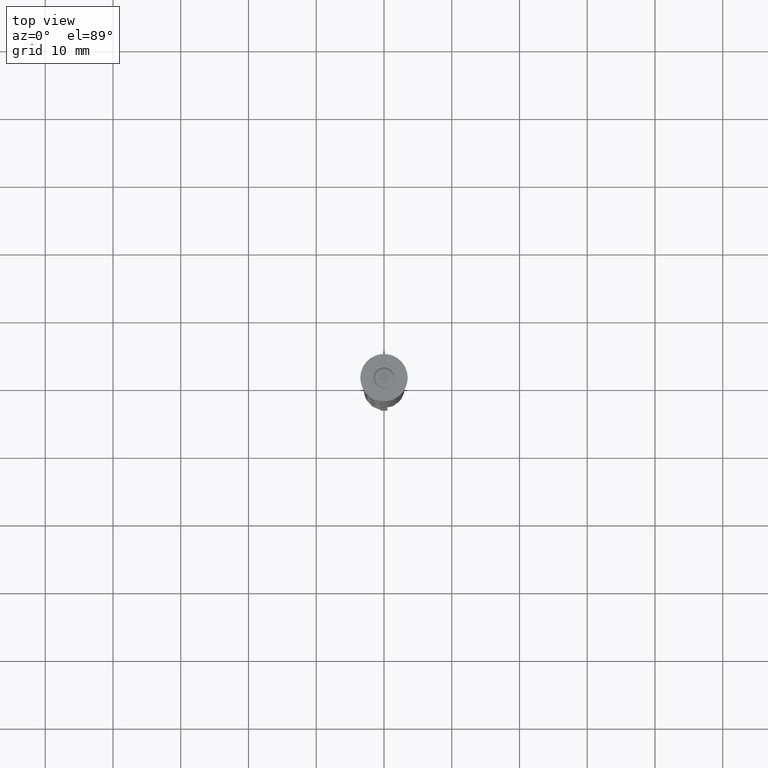
[diagram: clean part render]
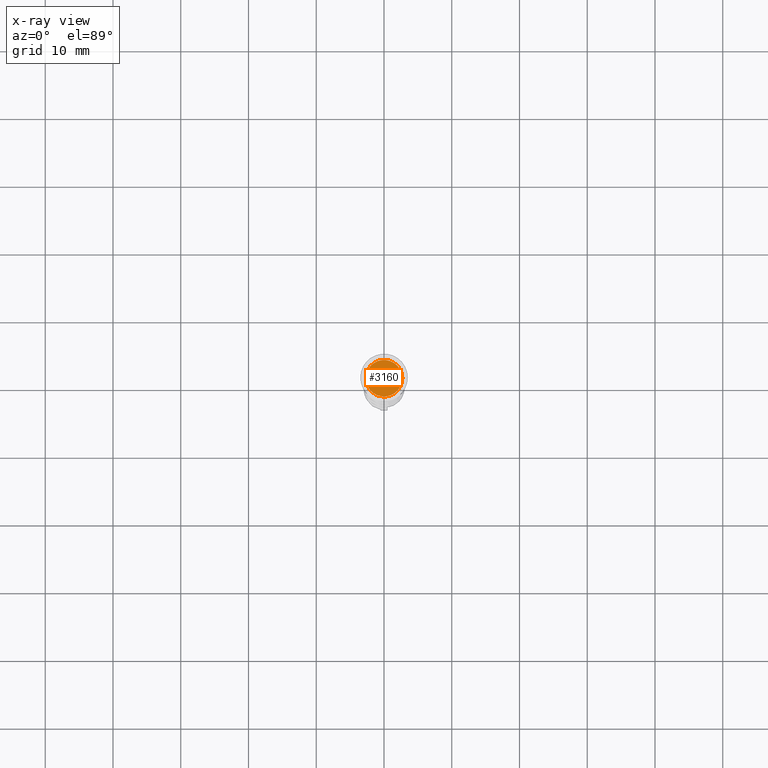
[diagram: x-ray — body ghosted, one internal face saturated and labeled with its STEP entity id]
A machine part, top view, then the same camera in x-ray: the body is ghosted and one INTERNAL B-rep face — a face not visible from any outside direction — is saturated and labeled: STEP entity #3160.
In plain terms, the highlighted planar face has unit normal (0, 0, -1).
Its self-contained STEP definition (entity closure, byte-faithful):
#315 = CARTESIAN_POINT ( 'NONE',  ( -2.700000000000002398, 0.000000000000000000, -5.500000000000000000 ) ) ;
#560 = ORIENTED_EDGE ( 'NONE', *, *, #2716, .T. ) ;
#587 = VERTEX_POINT ( 'NONE', #2917 ) ;
#628 = DIRECTION ( 'NONE',  ( -1.000000000000000000, 0.000000000000000000, 0.000000000000000000 ) ) ;
#742 = DIRECTION ( 'NONE',  ( 0.000000000000000000, 0.000000000000000000, -1.000000000000000000 ) ) ;
#772 = CARTESIAN_POINT ( 'NONE',  ( 0.000000000000000000, 0.000000000000000000, -5.500000000000000000 ) ) ;
#779 = EDGE_CURVE ( 'NONE', #587, #3435, #2226, .T. ) ;
#830 = CARTESIAN_POINT ( 'NONE',  ( 0.000000000000000000, 0.000000000000000000, -5.500000000000000000 ) ) ;
#1120 = EDGE_LOOP ( 'NONE', ( #560, #1830 ) ) ;
#1178 = AXIS2_PLACEMENT_3D ( 'NONE', #830, #1648, #2678 ) ;
#1398 = CIRCLE ( 'NONE', #1178, 2.700000000000002398 ) ;
#1648 = DIRECTION ( 'NONE',  ( -0.000000000000000000, -0.000000000000000000, 1.000000000000000000 ) ) ;
#1830 = ORIENTED_EDGE ( 'NONE', *, *, #779, .T. ) ;
#1939 = DIRECTION ( 'NONE',  ( -0.000000000000000000, -0.000000000000000000, 1.000000000000000000 ) ) ;
#2090 = PLANE ( 'NONE',  #3243 ) ;
#2175 = CARTESIAN_POINT ( 'NONE',  ( 0.000000000000000000, 0.000000000000000000, -5.500000000000000000 ) ) ;
#2226 = CIRCLE ( 'NONE', #3231, 2.700000000000002398 ) ;
#2375 = FACE_OUTER_BOUND ( 'NONE', #1120, .T. ) ;
#2678 = DIRECTION ( 'NONE',  ( -1.000000000000000000, 0.000000000000000000, 0.000000000000000000 ) ) ;
#2716 = EDGE_CURVE ( 'NONE', #3435, #587, #1398, .T. ) ;
#2917 = CARTESIAN_POINT ( 'NONE',  ( 2.700000000000002398, 3.490243377569959512E-16, -5.500000000000000000 ) ) ;
#3160 = ADVANCED_FACE ( 'NONE', ( #2375 ), #2090, .F. ) ;
#3231 = AXIS2_PLACEMENT_3D ( 'NONE', #2175, #1939, #628 ) ;
#3243 = AXIS2_PLACEMENT_3D ( 'NONE', #772, #742, #3446 ) ;
#3435 = VERTEX_POINT ( 'NONE', #315 ) ;
#3446 = DIRECTION ( 'NONE',  ( -1.000000000000000000, 0.000000000000000000, -0.000000000000000000 ) ) ;